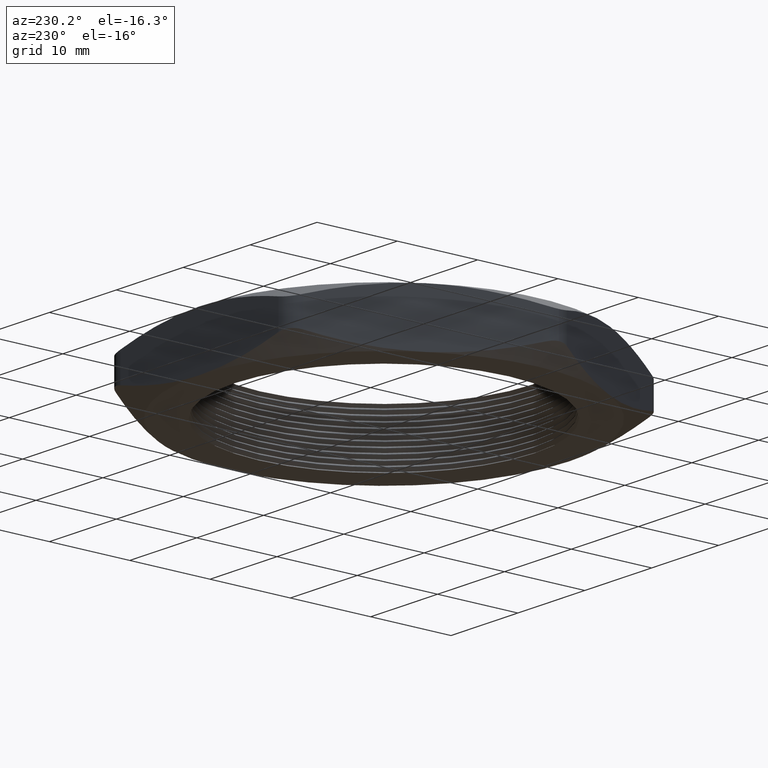
[diagram: clean part render]
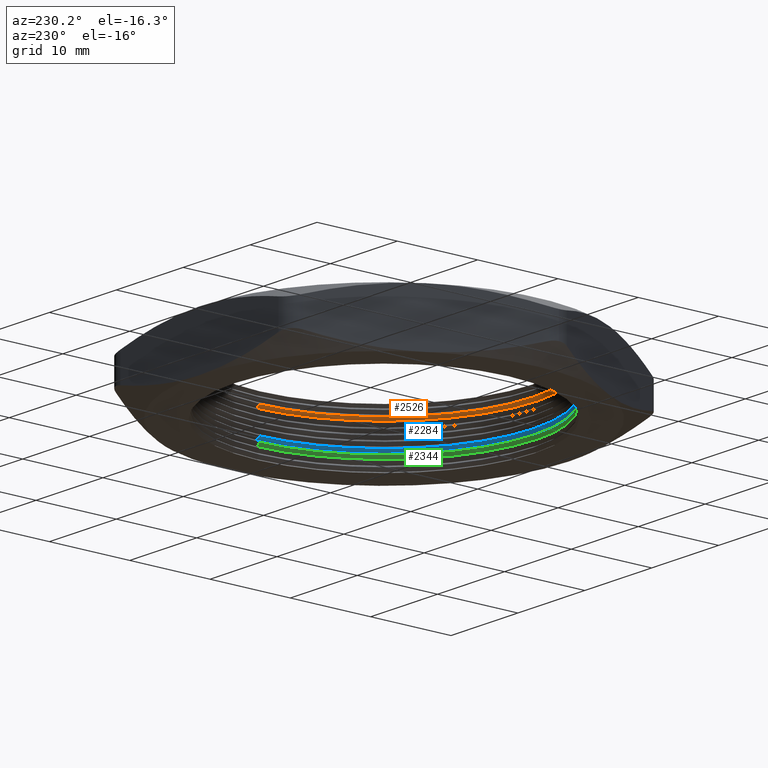
[diagram: same view with three faces highlighted in distinct colors, each labeled with its STEP entity id]
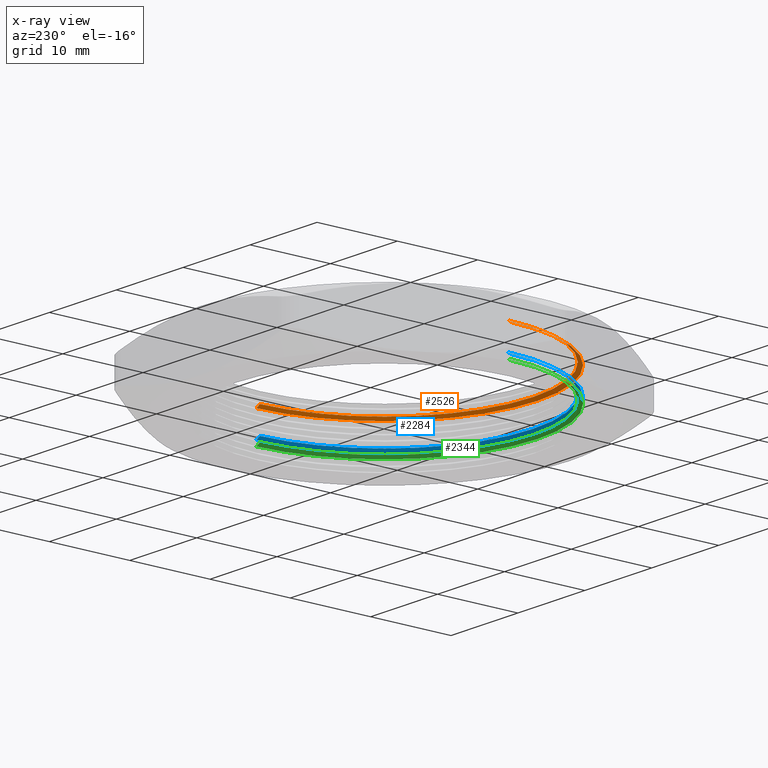
[diagram: x-ray of the same camera — body ghosted, the three highlighted faces saturated]
A machine part, auxiliary view with three faces highlighted in distinct colors.
The next image is the same camera in x-ray (body ghosted, the three faces saturated) — at least one of them is partly hidden behind the body in this view.
Their STEP definitions:

[orange] entity #2526 — the highlighted conical surface has half-angle 60 deg.
#72 = DIRECTION ( 'NONE',  ( -0.8660254037844423700, 0.0000000000000000000, -0.4999999999999933900 ) ) ;
#73 = VECTOR ( 'NONE', #72, 39.37007874015748100 ) ;
#74 = CARTESIAN_POINT ( 'NONE',  ( -0.7500000000000001100, 0.0000000000000000000, 0.2084529946162076700 ) ) ;
#75 = LINE ( 'NONE', #74, #73 ) ;
#141 = CARTESIAN_POINT ( 'NONE',  ( -0.7500000000000001100, 0.0000000000000000000, 0.2084529946162076700 ) ) ;
#148 = CARTESIAN_POINT ( 'NONE',  ( -0.7299999999999999800, 0.0000000000000000000, 0.2200000000000000000 ) ) ;
#149 = DIRECTION ( 'NONE',  ( 1.000000000000000000, 0.0000000000000000000, 0.0000000000000000000 ) ) ;
#150 = DIRECTION ( 'NONE',  ( 0.0000000000000000000, 0.0000000000000000000, 1.000000000000000000 ) ) ;
#151 = AXIS2_PLACEMENT_3D ( 'NONE', #157, #150, #149 ) ;
#152 = CIRCLE ( 'NONE', #151, 0.7299999999999999800 ) ;
#153 = DIRECTION ( 'NONE',  ( -1.000000000000000000, 0.0000000000000000000, 0.0000000000000000000 ) ) ;
#154 = DIRECTION ( 'NONE',  ( 0.0000000000000000000, 0.0000000000000000000, -1.000000000000000000 ) ) ;
#155 = CARTESIAN_POINT ( 'NONE',  ( 0.0000000000000000000, 0.0000000000000000000, 0.2084529946162076700 ) ) ;
#156 = AXIS2_PLACEMENT_3D ( 'NONE', #155, #154, #153 ) ;
#157 = CARTESIAN_POINT ( 'NONE',  ( 0.0000000000000000000, 0.0000000000000000000, 0.2200000000000000000 ) ) ;
#158 = CONICAL_SURFACE ( 'NONE', #156, 0.7500000000000001100, 1.047197551196605400 ) ;
#159 = FACE_OUTER_BOUND ( 'NONE', #2639, .T. ) ;
#164 = CARTESIAN_POINT ( 'NONE',  ( 0.7299999999999999800, 8.939921633775678300E-017, 0.2200000000000000000 ) ) ;
#346 = DIRECTION ( 'NONE',  ( 0.8660254037844423700, 1.060575238724911700E-016, -0.4999999999999933900 ) ) ;
#347 = VECTOR ( 'NONE', #346, 39.37007874015748100 ) ;
#348 = CARTESIAN_POINT ( 'NONE',  ( 0.7500000000000001100, 9.184850993605150900E-017, 0.2084529946162076700 ) ) ;
#349 = LINE ( 'NONE', #348, #347 ) ;
#375 = CARTESIAN_POINT ( 'NONE',  ( 0.7500000000000001100, 9.184850993605150900E-017, 0.2084529946162076700 ) ) ;
#376 = DIRECTION ( 'NONE',  ( 1.000000000000000000, 0.0000000000000000000, 0.0000000000000000000 ) ) ;
#377 = DIRECTION ( 'NONE',  ( 0.0000000000000000000, 0.0000000000000000000, 1.000000000000000000 ) ) ;
#378 = CARTESIAN_POINT ( 'NONE',  ( 0.0000000000000000000, 0.0000000000000000000, 0.2084529946162076700 ) ) ;
#379 = AXIS2_PLACEMENT_3D ( 'NONE', #378, #377, #376 ) ;
#380 = CIRCLE ( 'NONE', #379, 0.7500000000000001100 ) ;
#2505 = EDGE_CURVE ( 'NONE', #2529, #2534, #75, .T. ) ;
#2526 = ADVANCED_FACE ( 'NONE', ( #159 ), #158, .F. ) ;
#2527 = ORIENTED_EDGE ( 'NONE', *, *, #2528, .T. ) ;
#2528 = EDGE_CURVE ( 'NONE', #2529, #2551, #152, .T. ) ;
#2529 = VERTEX_POINT ( 'NONE', #148 ) ;
#2534 = VERTEX_POINT ( 'NONE', #141 ) ;
#2551 = VERTEX_POINT ( 'NONE', #164 ) ;
#2617 = ORIENTED_EDGE ( 'NONE', *, *, #2618, .T. ) ;
#2618 = EDGE_CURVE ( 'NONE', #2551, #2638, #349, .T. ) ;
#2619 = ORIENTED_EDGE ( 'NONE', *, *, #2637, .F. ) ;
#2620 = ORIENTED_EDGE ( 'NONE', *, *, #2505, .F. ) ;
#2637 = EDGE_CURVE ( 'NONE', #2534, #2638, #380, .T. ) ;
#2638 = VERTEX_POINT ( 'NONE', #375 ) ;
#2639 = EDGE_LOOP ( 'NONE', ( #2527, #2617, #2619, #2620 ) ) ;

[blue] entity #2284 — the highlighted conical surface has half-angle 60 deg.
#1774 = DIRECTION ( 'NONE',  ( -1.000000000000000000, 0.0000000000000000000, 0.0000000000000000000 ) ) ;
#1775 = DIRECTION ( 'NONE',  ( 0.0000000000000000000, 0.0000000000000000000, -1.000000000000000000 ) ) ;
#1776 = CARTESIAN_POINT ( 'NONE',  ( 0.0000000000000000000, 0.0000000000000000000, 0.08345299461620765700 ) ) ;
#1822 = CONICAL_SURFACE ( 'NONE', #1823, 0.7500000000000001100, 1.047197551196605400 ) ;
#1823 = AXIS2_PLACEMENT_3D ( 'NONE', #1776, #1775, #1774 ) ;
#1824 = FACE_OUTER_BOUND ( 'NONE', #2285, .T. ) ;
#1840 = CARTESIAN_POINT ( 'NONE',  ( 0.7299999999999999800, 8.939921633775678300E-017, 0.09500000000000001500 ) ) ;
#1841 = CARTESIAN_POINT ( 'NONE',  ( -0.7299999999999999800, 0.0000000000000000000, 0.09500000000000001500 ) ) ;
#1842 = DIRECTION ( 'NONE',  ( 1.000000000000000000, 0.0000000000000000000, 0.0000000000000000000 ) ) ;
#1843 = DIRECTION ( 'NONE',  ( 0.0000000000000000000, 0.0000000000000000000, 1.000000000000000000 ) ) ;
#1844 = CARTESIAN_POINT ( 'NONE',  ( 0.0000000000000000000, 0.0000000000000000000, 0.09500000000000001500 ) ) ;
#1845 = AXIS2_PLACEMENT_3D ( 'NONE', #1844, #1843, #1842 ) ;
#1846 = CIRCLE ( 'NONE', #1845, 0.7299999999999999800 ) ;
#1910 = DIRECTION ( 'NONE',  ( -0.8660254037844423700, 0.0000000000000000000, -0.4999999999999933900 ) ) ;
#1911 = VECTOR ( 'NONE', #1910, 39.37007874015748100 ) ;
#1912 = CARTESIAN_POINT ( 'NONE',  ( -0.7500000000000001100, 0.0000000000000000000, 0.08345299461620765700 ) ) ;
#1919 = DIRECTION ( 'NONE',  ( 0.8660254037844423700, 1.060575238724911700E-016, -0.4999999999999933900 ) ) ;
#1920 = VECTOR ( 'NONE', #1919, 39.37007874015748100 ) ;
#1921 = CARTESIAN_POINT ( 'NONE',  ( 0.7500000000000001100, 9.184850993605150900E-017, 0.08345299461620765700 ) ) ;
#1922 = LINE ( 'NONE', #1921, #1920 ) ;
#2051 = LINE ( 'NONE', #1912, #1911 ) ;
#2069 = CARTESIAN_POINT ( 'NONE',  ( 0.7500000000000001100, 9.184850993605150900E-017, 0.08345299461620765700 ) ) ;
#2070 = DIRECTION ( 'NONE',  ( 1.000000000000000000, 0.0000000000000000000, 0.0000000000000000000 ) ) ;
#2071 = DIRECTION ( 'NONE',  ( 0.0000000000000000000, 0.0000000000000000000, 1.000000000000000000 ) ) ;
#2072 = CARTESIAN_POINT ( 'NONE',  ( 0.0000000000000000000, 0.0000000000000000000, 0.08345299461620765700 ) ) ;
#2073 = AXIS2_PLACEMENT_3D ( 'NONE', #2072, #2071, #2070 ) ;
#2074 = CIRCLE ( 'NONE', #2073, 0.7500000000000001100 ) ;
#2075 = CARTESIAN_POINT ( 'NONE',  ( -0.7500000000000001100, 0.0000000000000000000, 0.08345299461620765700 ) ) ;
#2284 = ADVANCED_FACE ( 'NONE', ( #1824 ), #1822, .F. ) ;
#2285 = EDGE_LOOP ( 'NONE', ( #2286, #2401, #2398, #2399 ) ) ;
#2286 = ORIENTED_EDGE ( 'NONE', *, *, #2287, .T. ) ;
#2287 = EDGE_CURVE ( 'NONE', #2288, #2289, #1846, .T. ) ;
#2288 = VERTEX_POINT ( 'NONE', #1841 ) ;
#2289 = VERTEX_POINT ( 'NONE', #1840 ) ;
#2349 = EDGE_CURVE ( 'NONE', #2288, #2418, #2051, .T. ) ;
#2398 = ORIENTED_EDGE ( 'NONE', *, *, #2420, .F. ) ;
#2399 = ORIENTED_EDGE ( 'NONE', *, *, #2349, .F. ) ;
#2400 = EDGE_CURVE ( 'NONE', #2289, #2421, #1922, .T. ) ;
#2401 = ORIENTED_EDGE ( 'NONE', *, *, #2400, .T. ) ;
#2418 = VERTEX_POINT ( 'NONE', #2075 ) ;
#2420 = EDGE_CURVE ( 'NONE', #2418, #2421, #2074, .T. ) ;
#2421 = VERTEX_POINT ( 'NONE', #2069 ) ;

[green] entity #2344 — the highlighted conical surface has half-angle 60 deg.
#1945 = DIRECTION ( 'NONE',  ( -0.8660254037844423700, 0.0000000000000000000, -0.4999999999999933900 ) ) ;
#1946 = VECTOR ( 'NONE', #1945, 39.37007874015748100 ) ;
#1947 = CARTESIAN_POINT ( 'NONE',  ( -0.7500000000000001100, 0.0000000000000000000, 0.05845299461620765600 ) ) ;
#1948 = LINE ( 'NONE', #1947, #1946 ) ;
#1949 = DIRECTION ( 'NONE',  ( 0.8660254037844423700, 1.060575238724911700E-016, -0.4999999999999933900 ) ) ;
#1950 = VECTOR ( 'NONE', #1949, 39.37007874015748100 ) ;
#1951 = CARTESIAN_POINT ( 'NONE',  ( 0.7500000000000001100, 9.184850993605150900E-017, 0.05845299461620765600 ) ) ;
#1952 = LINE ( 'NONE', #1951, #1950 ) ;
#1953 = CARTESIAN_POINT ( 'NONE',  ( 0.7299999999999999800, 8.939921633775678300E-017, 0.07000000000000000700 ) ) ;
#1954 = CARTESIAN_POINT ( 'NONE',  ( -0.7299999999999999800, 0.0000000000000000000, 0.07000000000000000700 ) ) ;
#1955 = DIRECTION ( 'NONE',  ( 1.000000000000000000, 0.0000000000000000000, 0.0000000000000000000 ) ) ;
#1956 = DIRECTION ( 'NONE',  ( 0.0000000000000000000, 0.0000000000000000000, 1.000000000000000000 ) ) ;
#1957 = CARTESIAN_POINT ( 'NONE',  ( 0.0000000000000000000, 0.0000000000000000000, 0.07000000000000000700 ) ) ;
#1958 = AXIS2_PLACEMENT_3D ( 'NONE', #1957, #1956, #1955 ) ;
#1959 = CIRCLE ( 'NONE', #1958, 0.7299999999999999800 ) ;
#1960 = DIRECTION ( 'NONE',  ( 1.000000000000000000, 0.0000000000000000000, 0.0000000000000000000 ) ) ;
#1961 = DIRECTION ( 'NONE',  ( 0.0000000000000000000, 0.0000000000000000000, 1.000000000000000000 ) ) ;
#1962 = CARTESIAN_POINT ( 'NONE',  ( 0.0000000000000000000, 0.0000000000000000000, 0.05845299461620765600 ) ) ;
#1963 = AXIS2_PLACEMENT_3D ( 'NONE', #1962, #1961, #1960 ) ;
#1964 = CIRCLE ( 'NONE', #1963, 0.7500000000000001100 ) ;
#1965 = CARTESIAN_POINT ( 'NONE',  ( -0.7500000000000001100, 0.0000000000000000000, 0.05845299461620765600 ) ) ;
#2057 = DIRECTION ( 'NONE',  ( -1.000000000000000000, 0.0000000000000000000, 0.0000000000000000000 ) ) ;
#2058 = DIRECTION ( 'NONE',  ( 0.0000000000000000000, 0.0000000000000000000, -1.000000000000000000 ) ) ;
#2059 = CARTESIAN_POINT ( 'NONE',  ( 0.0000000000000000000, 0.0000000000000000000, 0.05845299461620765600 ) ) ;
#2060 = AXIS2_PLACEMENT_3D ( 'NONE', #2059, #2058, #2057 ) ;
#2062 = CONICAL_SURFACE ( 'NONE', #2060, 0.7500000000000001100, 1.047197551196605400 ) ;
#2063 = FACE_OUTER_BOUND ( 'NONE', #2345, .T. ) ;
#2102 = CARTESIAN_POINT ( 'NONE',  ( 0.7500000000000001100, 9.184850993605150900E-017, 0.05845299461620765600 ) ) ;
#2341 = VERTEX_POINT ( 'NONE', #2102 ) ;
#2344 = ADVANCED_FACE ( 'NONE', ( #2063 ), #2062, .F. ) ;
#2345 = EDGE_LOOP ( 'NONE', ( #2367, #2371, #2373, #2374 ) ) ;
#2364 = VERTEX_POINT ( 'NONE', #1965 ) ;
#2366 = EDGE_CURVE ( 'NONE', #2364, #2341, #1964, .T. ) ;
#2367 = ORIENTED_EDGE ( 'NONE', *, *, #2368, .T. ) ;
#2368 = EDGE_CURVE ( 'NONE', #2369, #2370, #1959, .T. ) ;
#2369 = VERTEX_POINT ( 'NONE', #1954 ) ;
#2370 = VERTEX_POINT ( 'NONE', #1953 ) ;
#2371 = ORIENTED_EDGE ( 'NONE', *, *, #2372, .T. ) ;
#2372 = EDGE_CURVE ( 'NONE', #2370, #2341, #1952, .T. ) ;
#2373 = ORIENTED_EDGE ( 'NONE', *, *, #2366, .F. ) ;
#2374 = ORIENTED_EDGE ( 'NONE', *, *, #2375, .F. ) ;
#2375 = EDGE_CURVE ( 'NONE', #2369, #2364, #1948, .T. ) ;